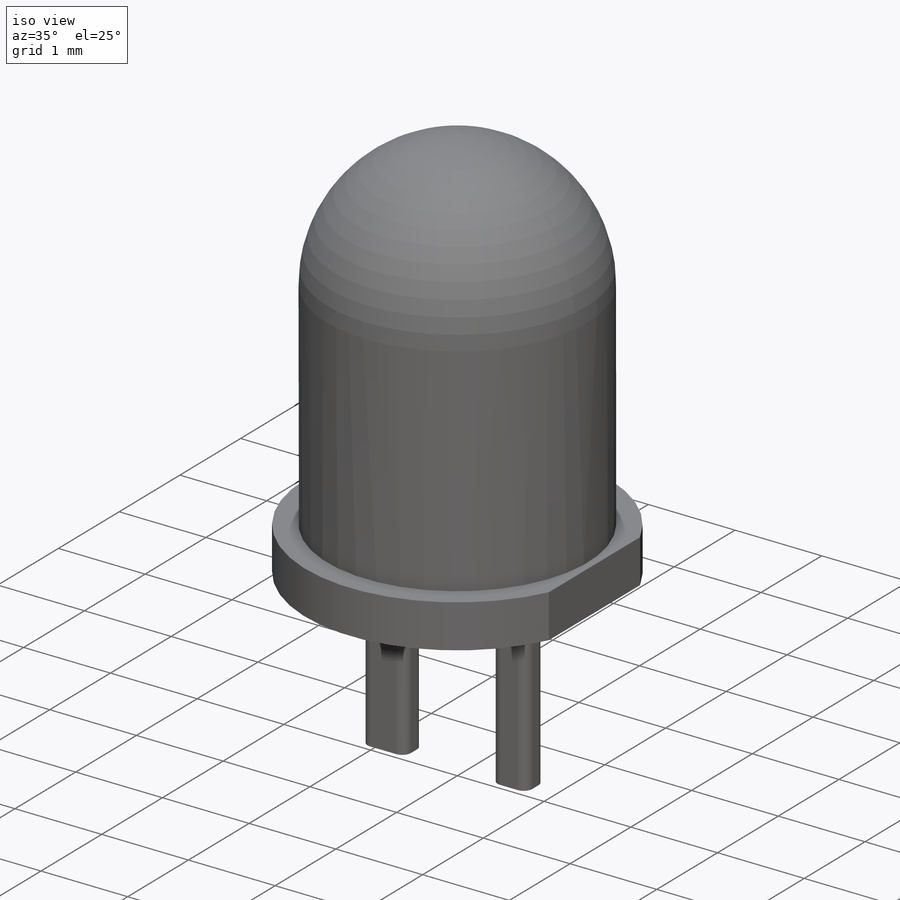
[diagram: iso view]
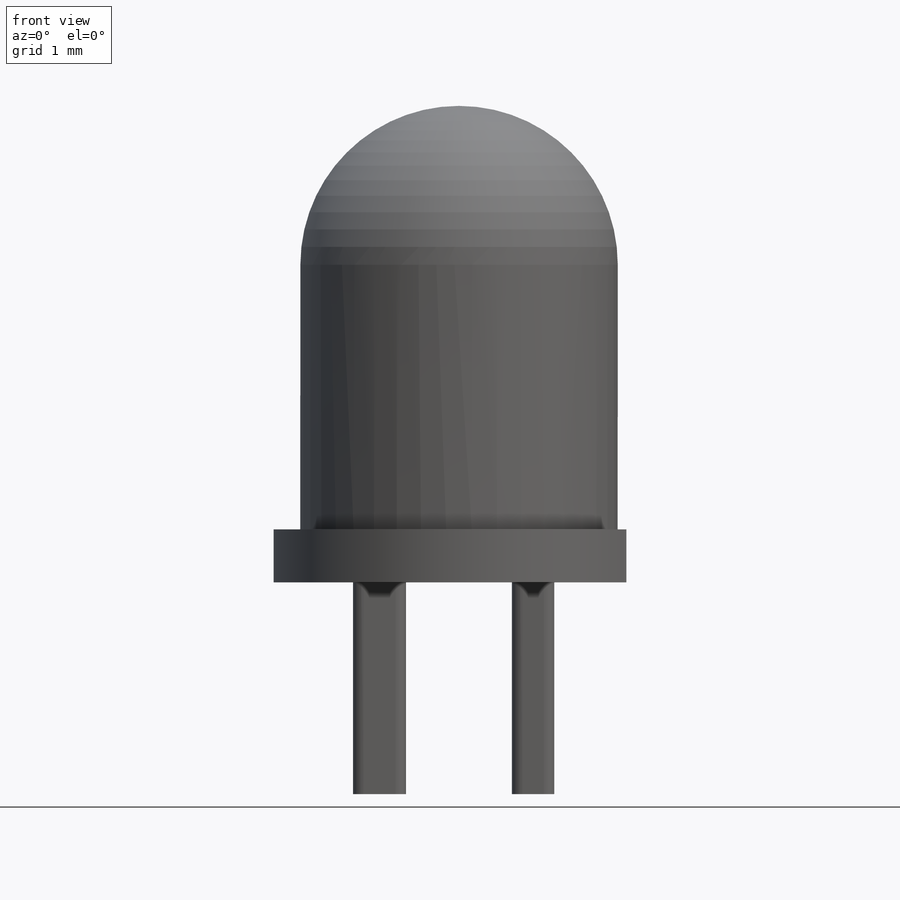
[diagram: front view]
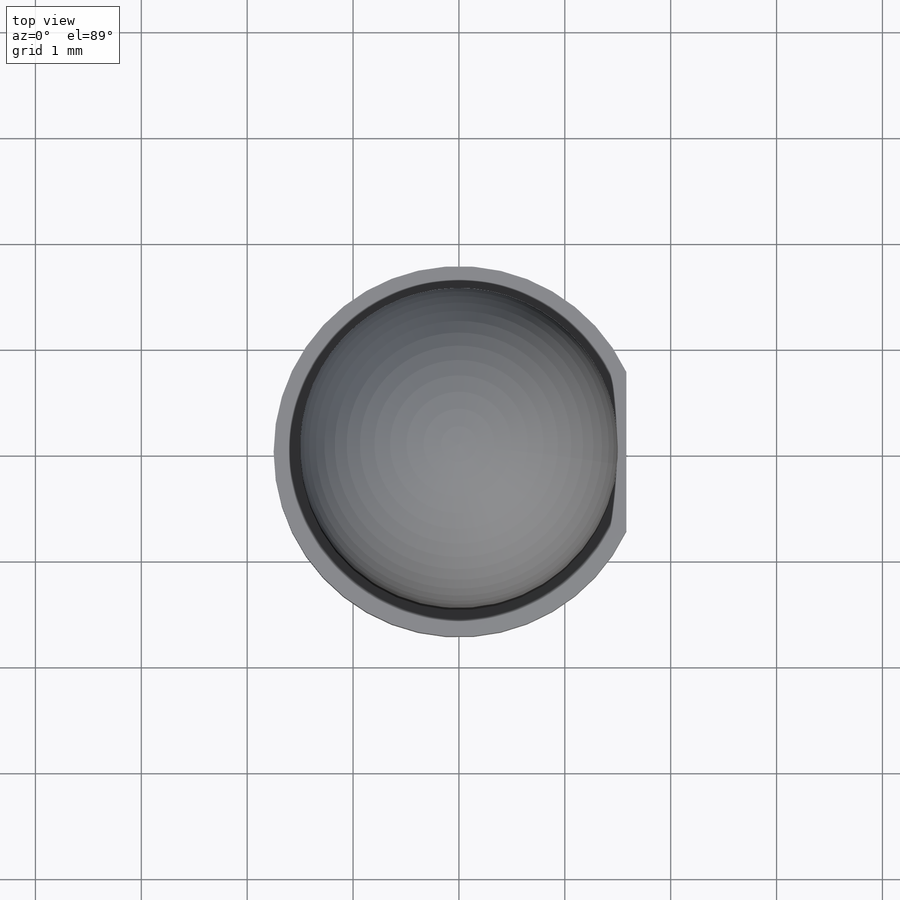
[diagram: top view]
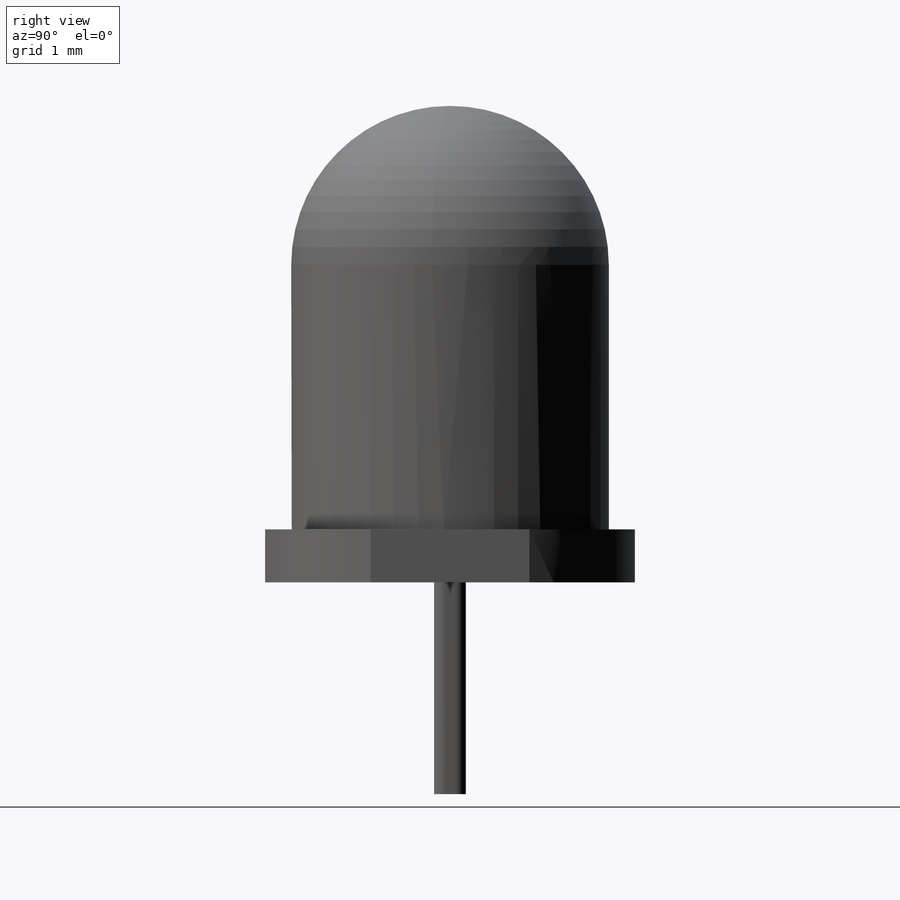
[diagram: right view]
SOLIDWORKS PART (.sldprt)
format: sldprt  version: not decoded by parser v0  size: 224,768 bytes
history: native  units: mm
features: plane x3, sketch x3, material x1, revolve x1, cut_extrude x1, extrude x1 (+12 scaffold rows collapsed)
feature tree (22):
  scaffold x12  (default folders/planes/origin — collapsed)
  material  "Material <nicht festgelegt>"
  plane  "Ebene vorne"
  plane  "Ebene oben"
  plane  "Ebene rechts"
  sketch  "Skizze2"  dims[c1.D1=1.5mm c1.D2=0.5mm c1.D3=~30.945698mm c2.D1=4.5mm c2.D3=1.75mm c2.D4=2.5mm c2.D5=1.5mm]
  revolve  "Rotation1"  Angle=360deg
  sketch  "Skizze3"  dims[D1=1.5mm]
  cut_extrude  "Schnitt-Linear austragen1"  Depth=1mm
  sketch  "Skizze4"  dims[c1.D7=0.1mm c1.D1=~0.233464mm c2.D1=90.0deg c3.D1=0.3mm c3.D2=0.4mm c3.D3=0.3mm c3.D4=0.5mm c3.D5=0.5mm c3.D6=0.5mm]
  extrude  "Linear austragen1"  Depth=2mm
decode coverage: 6 of 6 modeling features carry decoded parameters
note: ~ marks probable driven/reference dimensions
note: suppression state not decoded; provenance and decode notes live in map.json
